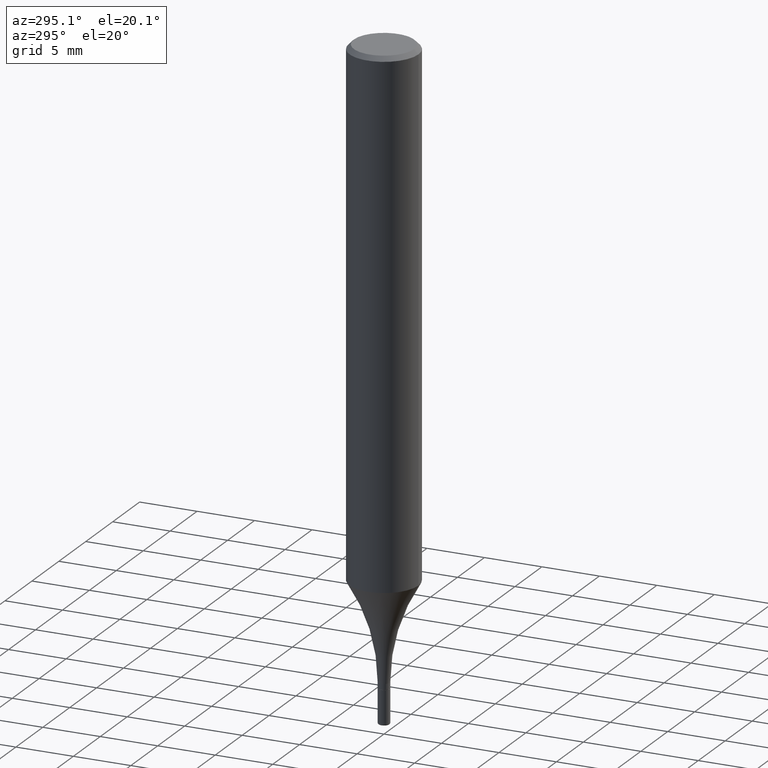
[diagram: clean part render]
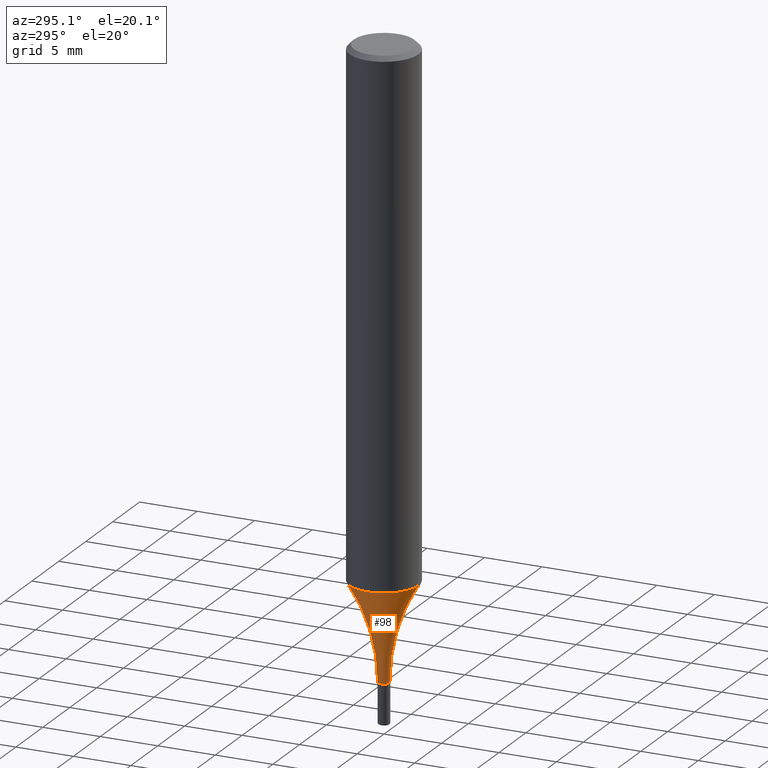
[diagram: same view with one face highlighted and labeled with its STEP entity id]
A machine part, auxiliary view. The second image highlights one B-rep face of the part: STEP entity #98.
In plain terms, the highlighted toroidal blend (fillet) surface has major radius 16.3754 mm and minor (blend) radius 15.875 mm.
Its self-contained STEP definition (entity closure, byte-faithful):
#4 = DIRECTION ( 'NONE',  ( -6.982962677686266711E-15, -1.000000000000000000, 3.488691266740256408E-15 ) ) ;
#34 = ORIENTED_EDGE ( 'NONE', *, *, #131, .F. ) ;
#45 = CARTESIAN_POINT ( 'NONE',  ( 4.895639449387564790E-16, 0.01969999999999257762, -2.106099999999999639 ) ) ;
#50 = DIRECTION ( 'NONE',  ( -6.982962677686265922E-15, -1.000000000000000000, 4.626330217890367758E-15 ) ) ;
#69 = AXIS2_PLACEMENT_3D ( 'NONE', #517, #90, #50 ) ;
#85 = FACE_OUTER_BOUND ( 'NONE', #135, .T. ) ;
#89 = AXIS2_PLACEMENT_3D ( 'NONE', #169, #375, #173 ) ;
#90 = DIRECTION ( 'NONE',  ( -2.447417103121389327E-29, 3.488691266740256803E-15, 1.000000000000000000 ) ) ;
#98 = ADVANCED_FACE ( 'NONE', ( #85 ), #290, .F. ) ;
#108 = ORIENTED_EDGE ( 'NONE', *, *, #412, .T. ) ;
#118 = CIRCLE ( 'NONE', #192, 0.6250000000000001110 ) ;
#125 = EDGE_CURVE ( 'NONE', #317, #488, #471, .T. ) ;
#131 = EDGE_CURVE ( 'NONE', #488, #197, #118, .T. ) ;
#135 = EDGE_LOOP ( 'NONE', ( #230, #183, #108, #34 ) ) ;
#154 = CARTESIAN_POINT ( 'NONE',  ( -4.501916038304283844E-15, -0.6447000000000073783, -2.106099999999997419 ) ) ;
#169 = CARTESIAN_POINT ( 'NONE',  ( 5.154505160883957169E-29, -7.347532676881652574E-15, -2.106099999999999639 ) ) ;
#173 = DIRECTION ( 'NONE',  ( -6.982962677686264344E-15, -1.000000000000000000, 0.000000000000000000 ) ) ;
#183 = ORIENTED_EDGE ( 'NONE', *, *, #401, .T. ) ;
#192 = AXIS2_PLACEMENT_3D ( 'NONE', #154, #403, #440 ) ;
#197 = VERTEX_POINT ( 'NONE', #435 ) ;
#215 = CARTESIAN_POINT ( 'NONE',  ( 4.580869017445415958E-15, 0.6446999999999926123, -2.106100000000001859 ) ) ;
#227 = CIRCLE ( 'NONE', #89, 0.01969999999999992590 ) ;
#230 = ORIENTED_EDGE ( 'NONE', *, *, #125, .F. ) ;
#232 = VERTEX_POINT ( 'NONE', #45 ) ;
#236 = AXIS2_PLACEMENT_3D ( 'NONE', #448, #360, #4 ) ;
#249 = DIRECTION ( 'NONE',  ( 7.105427357600999492E-15, 1.000000000000000000, 0.000000000000000000 ) ) ;
#253 = AXIS2_PLACEMENT_3D ( 'NONE', #215, #369, #249 ) ;
#290 = TOROIDAL_SURFACE ( 'NONE', #236, 0.6446999999999999398, 0.6250000000000000000 ) ;
#317 = VERTEX_POINT ( 'NONE', #497 ) ;
#360 = DIRECTION ( 'NONE',  ( -2.447417103121389327E-29, 3.488691266740256803E-15, 1.000000000000000000 ) ) ;
#369 = DIRECTION ( 'NONE',  ( 1.000000000000000000, -7.105427357601001070E-15, 4.926281340013380530E-29 ) ) ;
#375 = DIRECTION ( 'NONE',  ( -2.447417103121389327E-29, 3.488691266740256803E-15, 1.000000000000000000 ) ) ;
#389 = CARTESIAN_POINT ( 'NONE',  ( -8.246878922347047766E-16, -0.1181000000000062278, -1.769473441332980013 ) ) ;
#401 = EDGE_CURVE ( 'NONE', #317, #232, #481, .T. ) ;
#403 = DIRECTION ( 'NONE',  ( -1.000000000000000000, 6.982962677686265922E-15, -4.883557194083112901E-29 ) ) ;
#412 = EDGE_CURVE ( 'NONE', #232, #197, #227, .T. ) ;
#435 = CARTESIAN_POINT ( 'NONE',  ( -1.375643647503673714E-16, -0.01970000000000727072, -2.106099999999999639 ) ) ;
#440 = DIRECTION ( 'NONE',  ( -6.982962677686262766E-15, -1.000000000000000000, 0.000000000000000000 ) ) ;
#448 = CARTESIAN_POINT ( 'NONE',  ( 5.150401852706515444E-29, -7.353408847737546844E-15, -2.106099999999999639 ) ) ;
#471 = CIRCLE ( 'NONE', #69, 0.1181000000000000383 ) ;
#481 = CIRCLE ( 'NONE', #253, 0.6250000000000001110 ) ;
#488 = VERTEX_POINT ( 'NONE', #389 ) ;
#497 = CARTESIAN_POINT ( 'NONE',  ( 8.391509709327214858E-16, 0.1180999999999938072, -1.769473441332981123 ) ) ;
#517 = CARTESIAN_POINT ( 'NONE',  ( 4.330639563837398876E-29, -6.173146541507197219E-15, -1.769473441332980679 ) ) ;